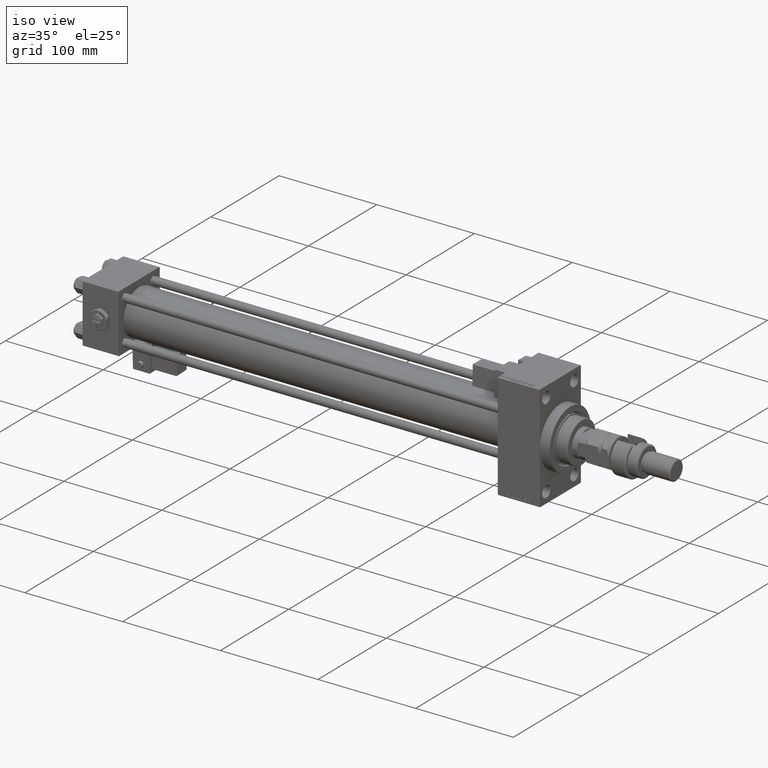
[diagram: clean part render]
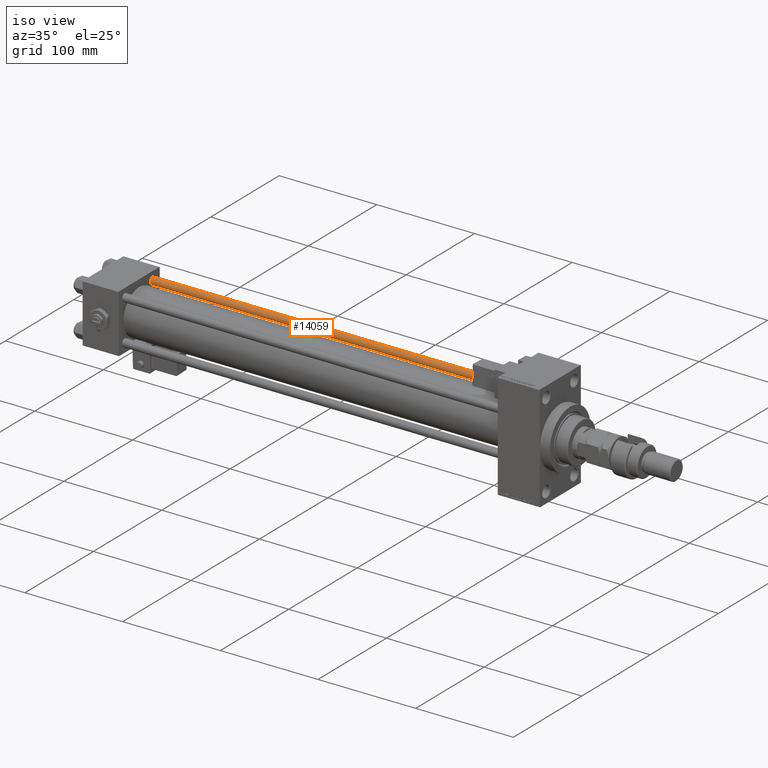
[diagram: same view with one face highlighted and labeled with its STEP entity id]
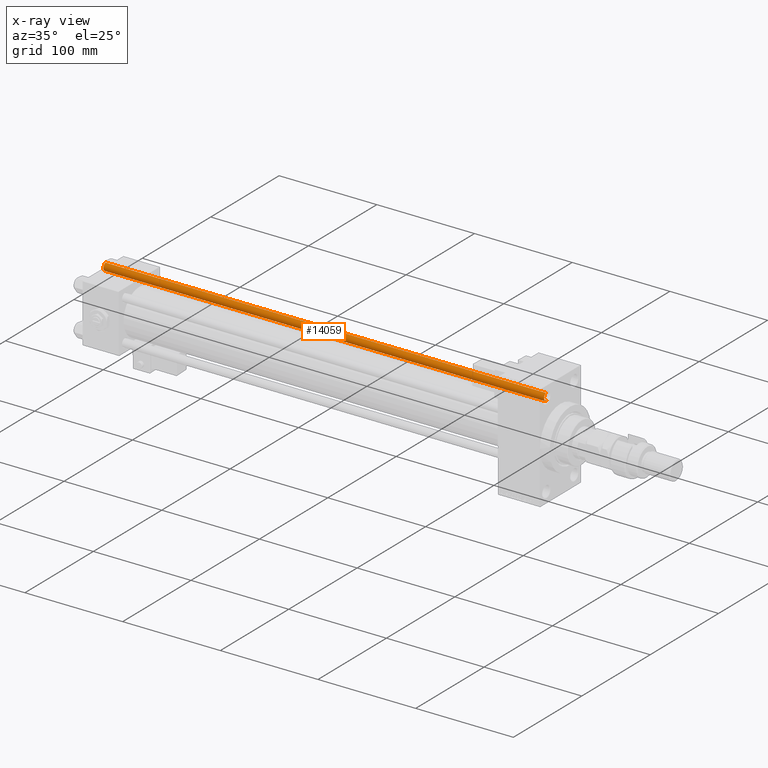
[diagram: x-ray of the same camera — body ghosted, the highlighted face saturated]
A machine part, iso view. The second image highlights one B-rep face of the part: STEP entity #14059.
The next image is the same camera in x-ray: the body ghosted, the highlighted face saturated — about 0% of this face is hidden behind the body in this view.
In plain terms, the highlighted cylindrical surface (edge-blend (fillet) strip) has radius 4 mm, axis along (-1, -0, 0).
Its self-contained STEP definition (entity closure, byte-faithful):
#367 = ORIENTED_EDGE ( 'NONE', *, *, #17903, .F. ) ;
#667 = LINE ( 'NONE', #4753, #43776 ) ;
#925 = DIRECTION ( 'NONE',  ( -0.000000000000000000, -0.000000000000000000, -1.000000000000000000 ) ) ;
#3391 = CARTESIAN_POINT ( 'NONE',  ( 0.000000000000000000, 0.000000000000000000, 452.0000000000000000 ) ) ;
#3582 = AXIS2_PLACEMENT_3D ( 'NONE', #3391, #20051, #28797 ) ;
#3667 = CYLINDRICAL_SURFACE ( 'NONE', #3582, 4.000000000000000000 ) ;
#4753 = CARTESIAN_POINT ( 'NONE',  ( 4.000000000000000000, 4.898587196589412829E-16, 452.0000000000000000 ) ) ;
#5639 = VECTOR ( 'NONE', #31083, 1000.000000000000000 ) ;
#7817 = CARTESIAN_POINT ( 'NONE',  ( -4.000000000000000000, 0.000000000000000000, 451.5000000000000000 ) ) ;
#10247 = CARTESIAN_POINT ( 'NONE',  ( 0.000000000000000000, 0.000000000000000000, 451.5000000000000000 ) ) ;
#10967 = CIRCLE ( 'NONE', #44038, 4.000000000000000000 ) ;
#11949 = VERTEX_POINT ( 'NONE', #30919 ) ;
#13437 = CARTESIAN_POINT ( 'NONE',  ( 4.000000000000000000, 4.898587196589412829E-16, 451.5000000000000000 ) ) ;
#14059 = ADVANCED_FACE ( 'NONE', ( #40840 ), #3667, .T. ) ;
#16717 = AXIS2_PLACEMENT_3D ( 'NONE', #10247, #43620, #26925 ) ;
#17903 = EDGE_CURVE ( 'NONE', #52944, #11949, #667, .T. ) ;
#20051 = DIRECTION ( 'NONE',  ( -0.000000000000000000, -0.000000000000000000, -1.000000000000000000 ) ) ;
#21317 = VERTEX_POINT ( 'NONE', #7817 ) ;
#25521 = EDGE_LOOP ( 'NONE', ( #367, #43748, #26999, #31817 ) ) ;
#26925 = DIRECTION ( 'NONE',  ( 1.000000000000000000, 0.000000000000000000, 0.000000000000000000 ) ) ;
#26999 = ORIENTED_EDGE ( 'NONE', *, *, #34303, .T. ) ;
#27454 = EDGE_CURVE ( 'NONE', #52944, #21317, #28934, .T. ) ;
#28797 = DIRECTION ( 'NONE',  ( -1.000000000000000000, 0.000000000000000000, 0.000000000000000000 ) ) ;
#28934 = CIRCLE ( 'NONE', #16717, 4.000000000000000000 ) ;
#30919 = CARTESIAN_POINT ( 'NONE',  ( 4.000000000000000000, 4.898587196589412829E-16, 0.5000000000000004441 ) ) ;
#31083 = DIRECTION ( 'NONE',  ( -0.000000000000000000, -0.000000000000000000, -1.000000000000000000 ) ) ;
#31817 = ORIENTED_EDGE ( 'NONE', *, *, #36832, .T. ) ;
#31889 = DIRECTION ( 'NONE',  ( -0.000000000000000000, -0.000000000000000000, 1.000000000000000000 ) ) ;
#32236 = CARTESIAN_POINT ( 'NONE',  ( -4.000000000000000000, 0.000000000000000000, 0.5000000000000004441 ) ) ;
#32425 = DIRECTION ( 'NONE',  ( 1.000000000000000000, 0.000000000000000000, 0.000000000000000000 ) ) ;
#32979 = CARTESIAN_POINT ( 'NONE',  ( 0.000000000000000000, 0.000000000000000000, 0.5000000000000004441 ) ) ;
#34303 = EDGE_CURVE ( 'NONE', #21317, #50155, #35467, .T. ) ;
#35467 = LINE ( 'NONE', #51887, #5639 ) ;
#36832 = EDGE_CURVE ( 'NONE', #50155, #11949, #10967, .T. ) ;
#40840 = FACE_OUTER_BOUND ( 'NONE', #25521, .T. ) ;
#43620 = DIRECTION ( 'NONE',  ( 0.000000000000000000, 0.000000000000000000, -1.000000000000000000 ) ) ;
#43748 = ORIENTED_EDGE ( 'NONE', *, *, #27454, .T. ) ;
#43776 = VECTOR ( 'NONE', #925, 1000.000000000000000 ) ;
#44038 = AXIS2_PLACEMENT_3D ( 'NONE', #32979, #31889, #32425 ) ;
#50155 = VERTEX_POINT ( 'NONE', #32236 ) ;
#51887 = CARTESIAN_POINT ( 'NONE',  ( -4.000000000000000000, 0.000000000000000000, 452.0000000000000000 ) ) ;
#52944 = VERTEX_POINT ( 'NONE', #13437 ) ;